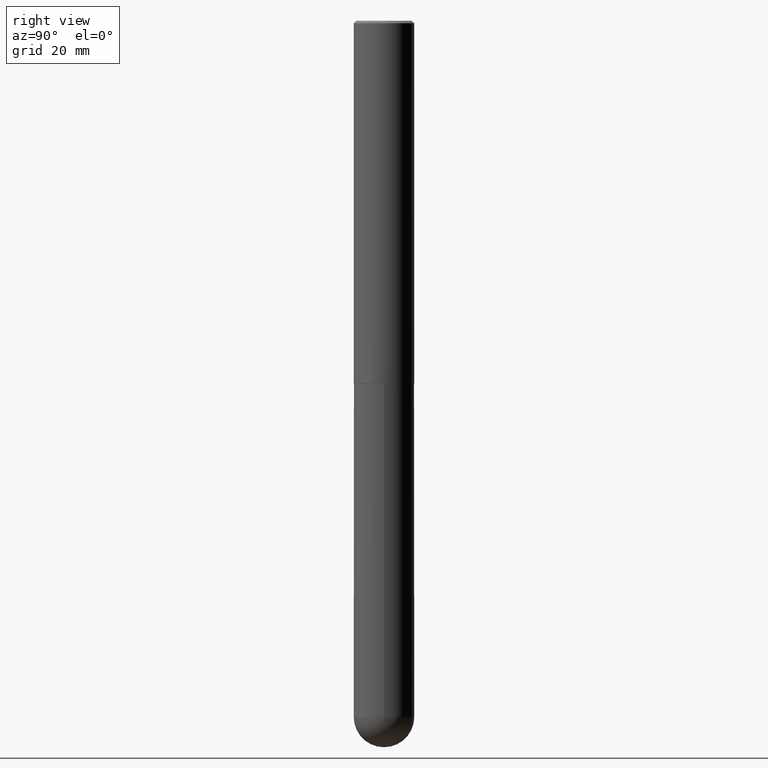
[diagram: clean part render]
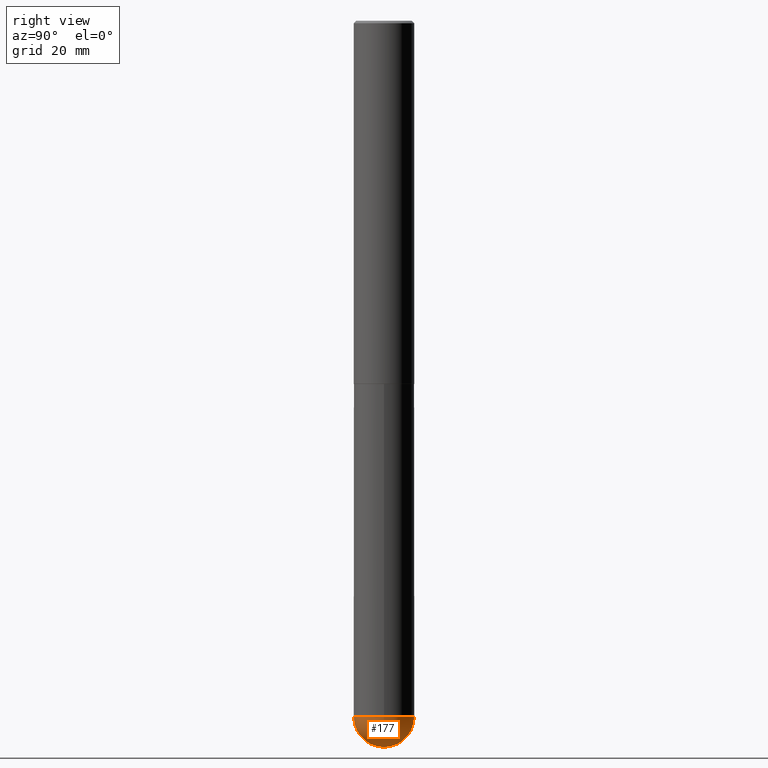
[diagram: same view with one face highlighted and labeled with its STEP entity id]
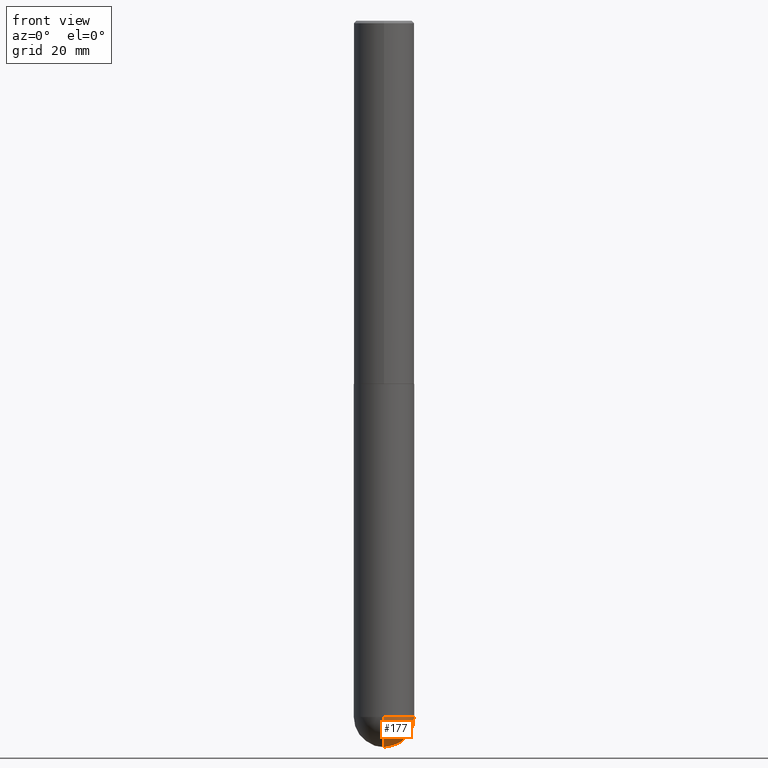
[diagram: same view with one face highlighted and labeled with its STEP entity id]
A machine part, right view. The second image highlights one B-rep face of the part: STEP entity #177.
A second angle (front view) of the same face is appended — the face is thin or edge-on in the first view.
In plain terms, the highlighted spherical surface has radius 6.35 mm.
Its self-contained STEP definition (entity closure, byte-faithful):
#2 = CARTESIAN_POINT ( 'NONE',  ( 0.2500000000000000000, -1.702097152686033033E-14, -5.750000000000000888 ) ) ;
#10 = CIRCLE ( 'NONE', #117, 0.2500000000000006661 ) ;
#36 = CIRCLE ( 'NONE', #272, 0.2500000000000006661 ) ;
#42 = VERTEX_POINT ( 'NONE', #84 ) ;
#50 = CARTESIAN_POINT ( 'NONE',  ( 1.373032585765065255E-28, -2.055020006648814124E-14, -5.750000000000000888 ) ) ;
#80 = CARTESIAN_POINT ( 'NONE',  ( 1.373032585765065255E-28, -2.055020006648814124E-14, -5.750000000000000888 ) ) ;
#84 = CARTESIAN_POINT ( 'NONE',  ( 1.435238263781167989E-28, -2.140776231620958900E-14, -6.000000000000001776 ) ) ;
#91 = EDGE_CURVE ( 'NONE', #268, #306, #258, .T. ) ;
#102 = DIRECTION ( 'NONE',  ( 6.982962677686266711E-15, 1.000000000000000000, 0.000000000000000000 ) ) ;
#113 = DIRECTION ( 'NONE',  ( -1.000000000000000000, 6.982962677686265922E-15, -4.883557194083112340E-29 ) ) ;
#116 = CARTESIAN_POINT ( 'NONE',  ( 1.406144563556453767E-28, -2.007601769834809252E-14, -5.750000000000000888 ) ) ;
#117 = AXIS2_PLACEMENT_3D ( 'NONE', #80, #210, #187 ) ;
#124 = ORIENTED_EDGE ( 'NONE', *, *, #308, .T. ) ;
#135 = ORIENTED_EDGE ( 'NONE', *, *, #144, .F. ) ;
#144 = EDGE_CURVE ( 'NONE', #306, #173, #348, .T. ) ;
#167 = CARTESIAN_POINT ( 'NONE',  ( 1.373032585765065255E-28, -2.055020006648814124E-14, -5.750000000000000888 ) ) ;
#173 = VERTEX_POINT ( 'NONE', #358 ) ;
#177 = ADVANCED_FACE ( 'NONE', ( #237 ), #270, .T. ) ;
#187 = DIRECTION ( 'NONE',  ( -7.105427357601001859E-15, -1.000000000000000000, 0.000000000000000000 ) ) ;
#190 = DIRECTION ( 'NONE',  ( -2.445468806185136597E-29, 3.491481338843145583E-15, 1.000000000000000000 ) ) ;
#199 = ORIENTED_EDGE ( 'NONE', *, *, #91, .F. ) ;
#210 = DIRECTION ( 'NONE',  ( -1.000000000000000000, 7.105427357601001070E-15, -4.926315508542082329E-29 ) ) ;
#213 = ORIENTED_EDGE ( 'NONE', *, *, #264, .F. ) ;
#218 = CARTESIAN_POINT ( 'NONE',  ( 1.406144563556453767E-28, -2.007601769834809252E-14, -5.750000000000000888 ) ) ;
#237 = FACE_OUTER_BOUND ( 'NONE', #392, .T. ) ;
#240 = DIRECTION ( 'NONE',  ( 1.000000000000000000, -6.982962677686262766E-15, 0.000000000000000000 ) ) ;
#241 = DIRECTION ( 'NONE',  ( -2.445468806185136597E-29, 3.491481338843145583E-15, 1.000000000000000000 ) ) ;
#242 = CARTESIAN_POINT ( 'NONE',  ( -1.776356839400113597E-15, -0.2500000000000206501, -5.750000000000000000 ) ) ;
#258 = CIRCLE ( 'NONE', #283, 0.2500000000000000000 ) ;
#264 = EDGE_CURVE ( 'NONE', #42, #268, #10, .T. ) ;
#268 = VERTEX_POINT ( 'NONE', #242 ) ;
#270 = SPHERICAL_SURFACE ( 'NONE', #390, 0.2500000000000006661 ) ;
#272 = AXIS2_PLACEMENT_3D ( 'NONE', #167, #384, #102 ) ;
#283 = AXIS2_PLACEMENT_3D ( 'NONE', #218, #190, #311 ) ;
#289 = AXIS2_PLACEMENT_3D ( 'NONE', #116, #241, #240 ) ;
#306 = VERTEX_POINT ( 'NONE', #2 ) ;
#308 = EDGE_CURVE ( 'NONE', #42, #173, #36, .T. ) ;
#311 = DIRECTION ( 'NONE',  ( 1.000000000000000000, -6.982962677686262766E-15, 0.000000000000000000 ) ) ;
#348 = CIRCLE ( 'NONE', #289, 0.2500000000000000000 ) ;
#358 = CARTESIAN_POINT ( 'NONE',  ( 1.745740669421707884E-15, 0.2499999999999800160, -5.750000000000001776 ) ) ;
#384 = DIRECTION ( 'NONE',  ( 1.000000000000000000, -6.982962677686265922E-15, 4.883557194083112340E-29 ) ) ;
#390 = AXIS2_PLACEMENT_3D ( 'NONE', #50, #113, #396 ) ;
#392 = EDGE_LOOP ( 'NONE', ( #213, #124, #135, #199 ) ) ;
#396 = DIRECTION ( 'NONE',  ( 6.982962677686265922E-15, 1.000000000000000000, -4.370956789862809317E-15 ) ) ;